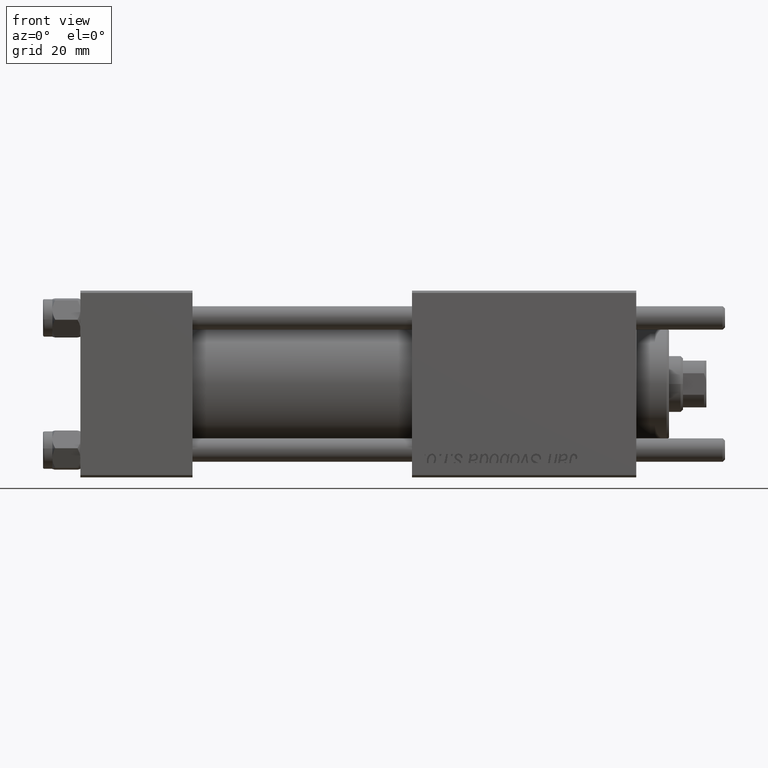
[diagram: clean part render]
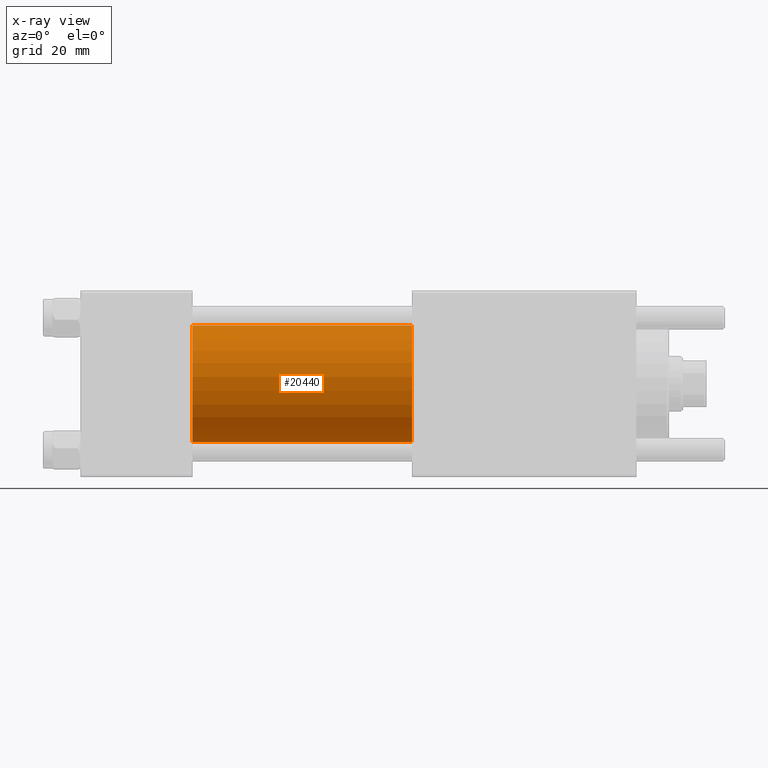
[diagram: x-ray — body ghosted, one internal face saturated and labeled with its STEP entity id]
A machine part, front view, then the same camera in x-ray: the body is ghosted and one INTERNAL B-rep face — a face not visible from any outside direction — is saturated and labeled: STEP entity #20440.
In plain terms, the highlighted cylindrical surface (partial cylindrical patch) has radius 12.5 mm, axis along (-1, -0, -0).
Its self-contained STEP definition (entity closure, byte-faithful):
#4026 = DIRECTION ( 'NONE',  ( -1.000000000000000000, -0.000000000000000000, -0.000000000000000000 ) ) ;
#4553 = ORIENTED_EDGE ( 'NONE', *, *, #11232, .F. ) ;
#6484 = VERTEX_POINT ( 'NONE', #34638 ) ;
#6951 = CARTESIAN_POINT ( 'NONE',  ( 24.00000000000000000, -2.602085213965210642E-15, 12.49999999999999645 ) ) ;
#7452 = DIRECTION ( 'NONE',  ( 1.000000000000000000, 0.000000000000000000, 0.000000000000000000 ) ) ;
#8607 = ORIENTED_EDGE ( 'NONE', *, *, #39635, .F. ) ;
#8871 = EDGE_CURVE ( 'NONE', #36884, #6484, #15678, .T. ) ;
#11232 = EDGE_CURVE ( 'NONE', #36884, #38469, #30904, .T. ) ;
#12069 = DIRECTION ( 'NONE',  ( 1.000000000000000000, 0.000000000000000000, 0.000000000000000000 ) ) ;
#12344 = DIRECTION ( 'NONE',  ( 0.000000000000000000, 0.000000000000000000, -1.000000000000000000 ) ) ;
#13017 = VECTOR ( 'NONE', #36828, 1000.000000000000000 ) ;
#15678 = CIRCLE ( 'NONE', #49577, 12.49999999999999645 ) ;
#16332 = EDGE_LOOP ( 'NONE', ( #31623, #52628, #8607, #4553 ) ) ;
#17913 = VERTEX_POINT ( 'NONE', #41027 ) ;
#19330 = CARTESIAN_POINT ( 'NONE',  ( 24.00000000000000000, -2.602085213965210642E-15, 0.000000000000000000 ) ) ;
#20440 = ADVANCED_FACE ( 'NONE', ( #50829 ), #32497, .F. ) ;
#23880 = DIRECTION ( 'NONE',  ( -1.000000000000000000, -0.000000000000000000, -0.000000000000000000 ) ) ;
#28513 = DIRECTION ( 'NONE',  ( 0.000000000000000000, 0.000000000000000000, -1.000000000000000000 ) ) ;
#30904 = LINE ( 'NONE', #32248, #13017 ) ;
#31623 = ORIENTED_EDGE ( 'NONE', *, *, #8871, .T. ) ;
#32248 = CARTESIAN_POINT ( 'NONE',  ( 71.00000000000001421, -2.602085213965210642E-15, 12.49999999999999645 ) ) ;
#32497 = CYLINDRICAL_SURFACE ( 'NONE', #34237, 12.49999999999999645 ) ;
#34237 = AXIS2_PLACEMENT_3D ( 'NONE', #41919, #23880, #41071 ) ;
#34341 = EDGE_CURVE ( 'NONE', #6484, #17913, #55384, .T. ) ;
#34638 = CARTESIAN_POINT ( 'NONE',  ( 71.00000000000001421, -1.071276715031019515E-15, -12.49999999999999645 ) ) ;
#36828 = DIRECTION ( 'NONE',  ( -1.000000000000000000, -0.000000000000000000, -0.000000000000000000 ) ) ;
#36884 = VERTEX_POINT ( 'NONE', #40004 ) ;
#38469 = VERTEX_POINT ( 'NONE', #6951 ) ;
#39030 = VECTOR ( 'NONE', #4026, 1000.000000000000000 ) ;
#39635 = EDGE_CURVE ( 'NONE', #38469, #17913, #48311, .T. ) ;
#40004 = CARTESIAN_POINT ( 'NONE',  ( 71.00000000000001421, -2.602085213965210642E-15, 12.49999999999999645 ) ) ;
#41027 = CARTESIAN_POINT ( 'NONE',  ( 24.00000000000000000, -1.071276715031019515E-15, -12.49999999999999645 ) ) ;
#41071 = DIRECTION ( 'NONE',  ( 0.000000000000000000, 0.000000000000000000, 1.000000000000000000 ) ) ;
#41919 = CARTESIAN_POINT ( 'NONE',  ( 71.00000000000001421, -2.602085213965210642E-15, 0.000000000000000000 ) ) ;
#43754 = AXIS2_PLACEMENT_3D ( 'NONE', #19330, #12069, #28513 ) ;
#48311 = CIRCLE ( 'NONE', #43754, 12.49999999999999645 ) ;
#49577 = AXIS2_PLACEMENT_3D ( 'NONE', #50772, #7452, #12344 ) ;
#50772 = CARTESIAN_POINT ( 'NONE',  ( 71.00000000000001421, -2.602085213965210642E-15, 0.000000000000000000 ) ) ;
#50829 = FACE_OUTER_BOUND ( 'NONE', #16332, .T. ) ;
#51083 = CARTESIAN_POINT ( 'NONE',  ( 71.00000000000001421, -1.071276715031019515E-15, -12.49999999999999645 ) ) ;
#52628 = ORIENTED_EDGE ( 'NONE', *, *, #34341, .T. ) ;
#55384 = LINE ( 'NONE', #51083, #39030 ) ;